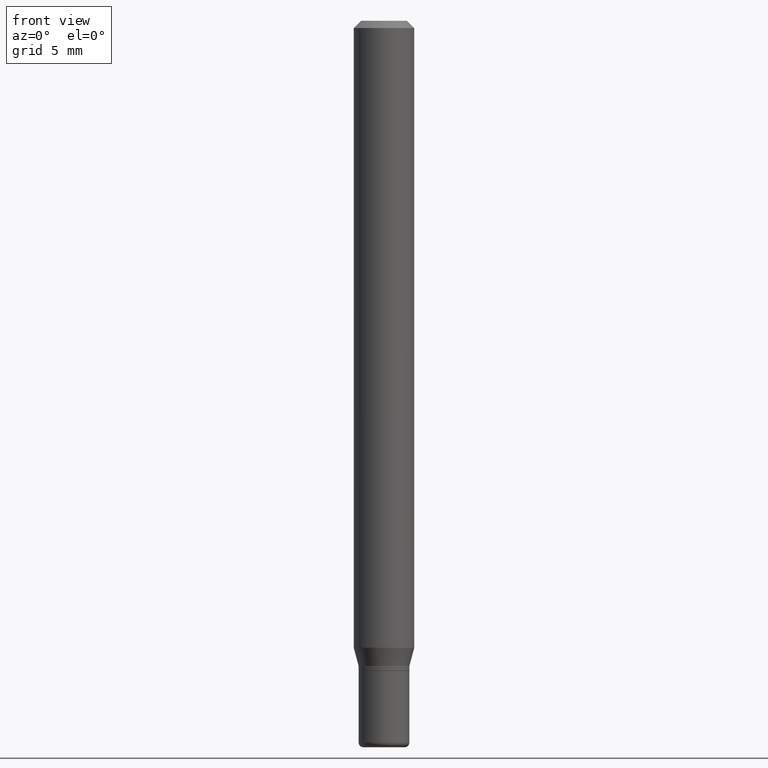
[diagram: clean part render]
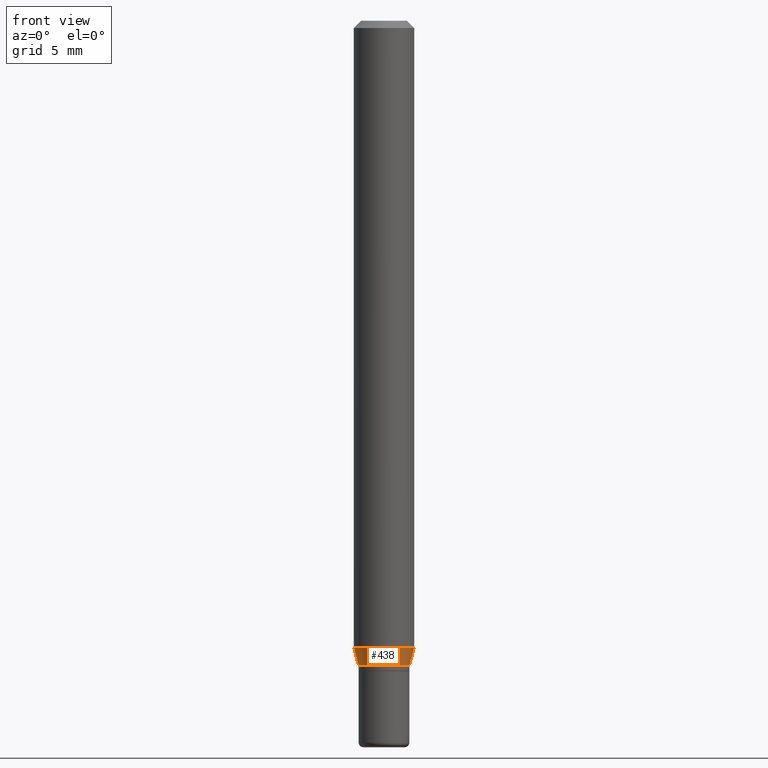
[diagram: same view with one face highlighted and labeled with its STEP entity id]
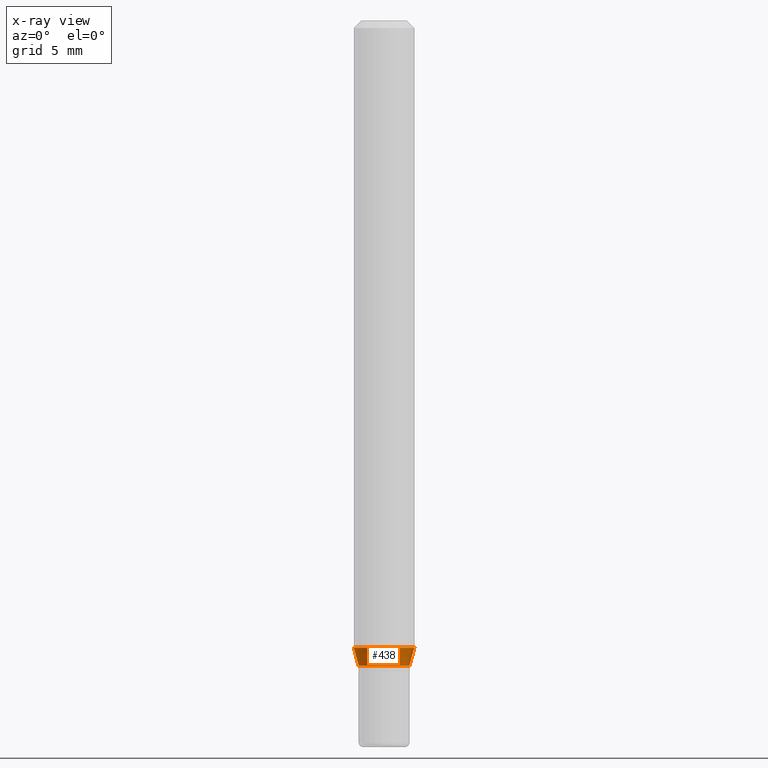
[diagram: x-ray of the same camera — body ghosted, the highlighted face saturated]
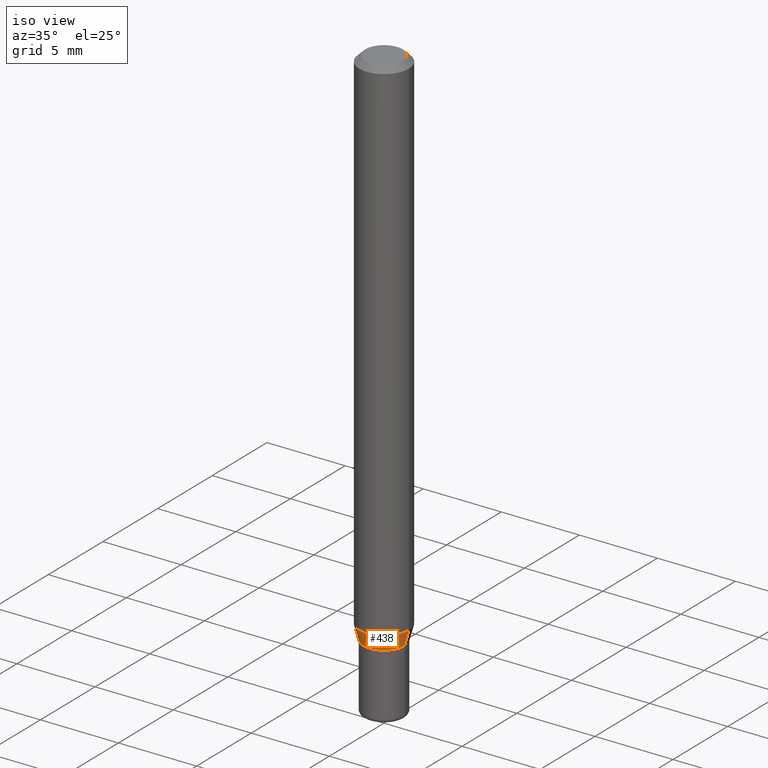
[diagram: same view with one face highlighted and labeled with its STEP entity id]
A machine part, front view. The second image highlights one B-rep face of the part: STEP entity #438.
The next image is the same camera in x-ray: the body ghosted, the highlighted face saturated — about 0% of this face is hidden behind the body in this view.
A second angle (iso view) of the same face is appended — the face is thin or edge-on in the first view.
In plain terms, the highlighted conical surface has half-angle 15 deg.
Its self-contained STEP definition (entity closure, byte-faithful):
#8 = CARTESIAN_POINT ( 'NONE',  ( -0.06250000000000000000, -4.076260075986595677E-15, -1.294679491924311421 ) ) ;
#69 = DIRECTION ( 'NONE',  ( 1.000000000000000000, -6.982962677686262766E-15, 0.000000000000000000 ) ) ;
#84 = AXIS2_PLACEMENT_3D ( 'NONE', #233, #157, #69 ) ;
#98 = CIRCLE ( 'NONE', #84, 0.06250000000000000000 ) ;
#102 = ORIENTED_EDGE ( 'NONE', *, *, #165, .F. ) ;
#117 = CARTESIAN_POINT ( 'NONE',  ( 3.257364449838602072E-29, -4.650653143339070101E-15, -1.332000000000000073 ) ) ;
#134 = EDGE_CURVE ( 'NONE', #219, #369, #451, .T. ) ;
#137 = DIRECTION ( 'NONE',  ( 0.2588190451025217387, 1.565188264969619207E-15, 0.9659258262890679791 ) ) ;
#145 = DIRECTION ( 'NONE',  ( -0.2588190451025217387, 5.211531920934551042E-15, 0.9659258262890679791 ) ) ;
#157 = DIRECTION ( 'NONE',  ( -2.445468806185136597E-29, 3.491481338843145583E-15, 1.000000000000000000 ) ) ;
#159 = CARTESIAN_POINT ( 'NONE',  ( 0.06250000000000000000, -4.956784453192050752E-15, -1.294679491924311421 ) ) ;
#165 = EDGE_CURVE ( 'NONE', #313, #468, #505, .T. ) ;
#176 = ORIENTED_EDGE ( 'NONE', *, *, #306, .F. ) ;
#177 = DIRECTION ( 'NONE',  ( -2.445468806185136597E-29, 3.491481338843145583E-15, 1.000000000000000000 ) ) ;
#181 = VECTOR ( 'NONE', #145, 39.37007874015748854 ) ;
#190 = DIRECTION ( 'NONE',  ( 1.000000000000000000, -6.982962677686269866E-15, 0.000000000000000000 ) ) ;
#219 = VERTEX_POINT ( 'NONE', #431 ) ;
#233 = CARTESIAN_POINT ( 'NONE',  ( 3.166098311508524908E-29, -4.520349285836658294E-15, -1.294679491924311421 ) ) ;
#246 = ORIENTED_EDGE ( 'NONE', *, *, #512, .T. ) ;
#269 = CARTESIAN_POINT ( 'NONE',  ( -0.05249999999999998418, -4.176939141525806622E-15, -1.332000000000000073 ) ) ;
#273 = EDGE_LOOP ( 'NONE', ( #102, #246, #488, #176 ) ) ;
#277 = DIRECTION ( 'NONE',  ( 1.000000000000000000, -6.982962677686269866E-15, 0.000000000000000000 ) ) ;
#306 = EDGE_CURVE ( 'NONE', #468, #369, #98, .T. ) ;
#310 = CARTESIAN_POINT ( 'NONE',  ( -0.05249999999999998418, -4.277618207065018355E-15, -1.332000000000000073 ) ) ;
#313 = VERTEX_POINT ( 'NONE', #269 ) ;
#319 = CONICAL_SURFACE ( 'NONE', #508, 0.05249999999999998418, 0.2617993877991504625 ) ;
#345 = AXIS2_PLACEMENT_3D ( 'NONE', #424, #177, #190 ) ;
#361 = FACE_OUTER_BOUND ( 'NONE', #273, .T. ) ;
#366 = DIRECTION ( 'NONE',  ( -2.445468806185136597E-29, 3.491481338843145583E-15, 1.000000000000000000 ) ) ;
#369 = VERTEX_POINT ( 'NONE', #159 ) ;
#399 = VECTOR ( 'NONE', #137, 39.37007874015748854 ) ;
#424 = CARTESIAN_POINT ( 'NONE',  ( 3.257364449838602072E-29, -4.650653143339070101E-15, -1.332000000000000073 ) ) ;
#431 = CARTESIAN_POINT ( 'NONE',  ( 0.05249999999999998418, -5.017258683917599261E-15, -1.332000000000000073 ) ) ;
#438 = ADVANCED_FACE ( 'NONE', ( #361 ), #319, .T. ) ;
#451 = LINE ( 'NONE', #491, #399 ) ;
#455 = CIRCLE ( 'NONE', #345, 0.05249999999999998418 ) ;
#468 = VERTEX_POINT ( 'NONE', #8 ) ;
#488 = ORIENTED_EDGE ( 'NONE', *, *, #134, .T. ) ;
#491 = CARTESIAN_POINT ( 'NONE',  ( 0.05249999999999998418, -5.017258683917599261E-15, -1.332000000000000073 ) ) ;
#505 = LINE ( 'NONE', #310, #181 ) ;
#508 = AXIS2_PLACEMENT_3D ( 'NONE', #117, #366, #277 ) ;
#512 = EDGE_CURVE ( 'NONE', #313, #219, #455, .T. ) ;